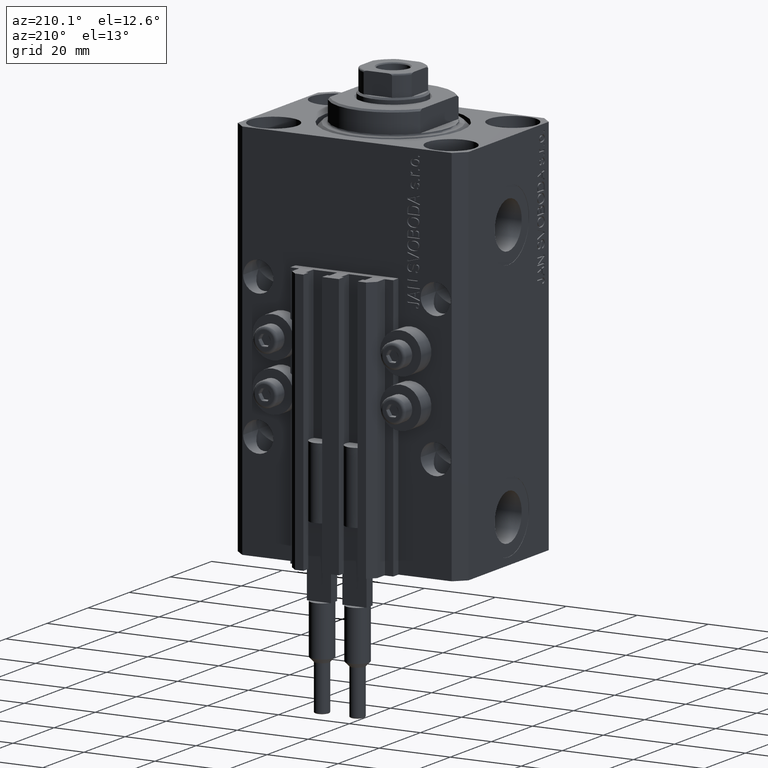
[diagram: clean part render]
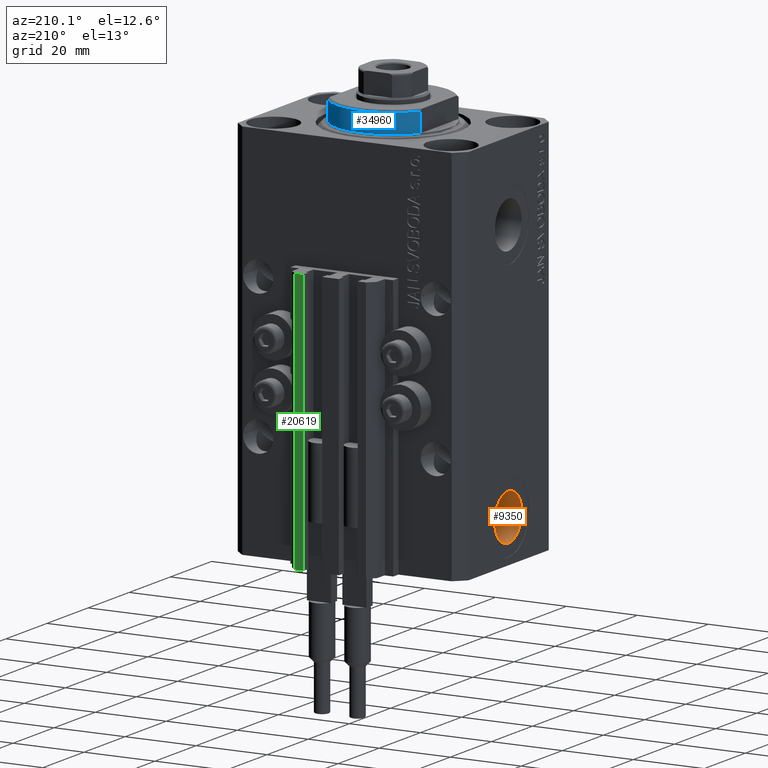
[diagram: same view with three faces highlighted in distinct colors, each labeled with its STEP entity id]
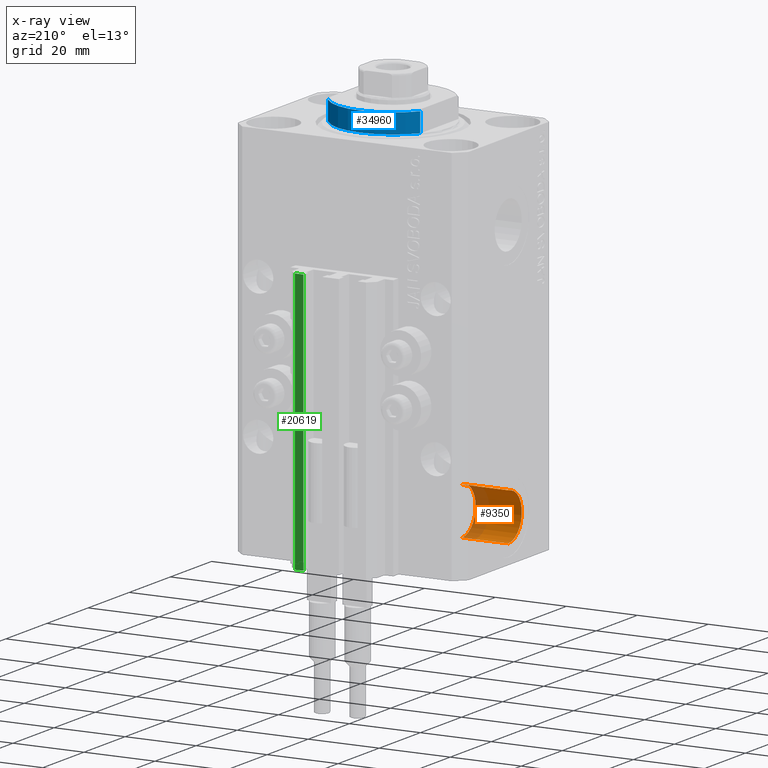
[diagram: x-ray of the same camera — body ghosted, the three highlighted faces saturated]
A machine part, auxiliary view with three faces highlighted in distinct colors.
The next image is the same camera in x-ray (body ghosted, the three faces saturated) — at least one of them is partly hidden behind the body in this view.
Their STEP definitions:

[orange] entity #9350 — the highlighted cylindrical surface (edge-blend (fillet) strip) has radius 6.58 mm, axis along (-1, -0, -0).
#93 = CARTESIAN_POINT ( 'NONE',  ( -19.39999999999650271, -1.163414459189985643E-14, -95.00000000000000000 ) ) ;
#3465 = CARTESIAN_POINT ( 'NONE',  ( -32.39999999999650271, -1.163414459189985643E-14, -88.42000000000000171 ) ) ;
#4131 = AXIS2_PLACEMENT_3D ( 'NONE', #7194, #11401, #18103 ) ;
#4463 = DIRECTION ( 'NONE',  ( -1.000000000000000000, -0.000000000000000000, -0.000000000000000000 ) ) ;
#4959 = CARTESIAN_POINT ( 'NONE',  ( -19.39999999999650271, -1.163414459189985643E-14, -88.42000000000000171 ) ) ;
#5482 = EDGE_CURVE ( 'NONE', #44669, #22899, #48176, .T. ) ;
#7194 = CARTESIAN_POINT ( 'NONE',  ( -19.39999999999650271, -1.163414459189985643E-14, -95.00000000000000000 ) ) ;
#7470 = DIRECTION ( 'NONE',  ( 0.000000000000000000, 0.000000000000000000, 1.000000000000000000 ) ) ;
#8529 = DIRECTION ( 'NONE',  ( -1.000000000000000000, -0.000000000000000000, -0.000000000000000000 ) ) ;
#8775 = DIRECTION ( 'NONE',  ( 0.000000000000000000, 0.000000000000000000, 1.000000000000000000 ) ) ;
#9350 = ADVANCED_FACE ( 'NONE', ( #26892 ), #38533, .F. ) ;
#9409 = VERTEX_POINT ( 'NONE', #20167 ) ;
#11204 = DIRECTION ( 'NONE',  ( -1.000000000000000000, 0.000000000000000000, 0.000000000000000000 ) ) ;
#11401 = DIRECTION ( 'NONE',  ( -1.000000000000000000, 0.000000000000000000, 0.000000000000000000 ) ) ;
#12892 = EDGE_CURVE ( 'NONE', #38949, #44669, #19341, .T. ) ;
#14430 = CIRCLE ( 'NONE', #4131, 6.580000000000002736 ) ;
#15881 = DIRECTION ( 'NONE',  ( -1.000000000000000000, -0.000000000000000000, -0.000000000000000000 ) ) ;
#18103 = DIRECTION ( 'NONE',  ( 0.000000000000000000, 0.000000000000000000, 1.000000000000000000 ) ) ;
#18330 = EDGE_CURVE ( 'NONE', #38949, #9409, #14430, .T. ) ;
#18995 = AXIS2_PLACEMENT_3D ( 'NONE', #93, #8529, #8775 ) ;
#19341 = LINE ( 'NONE', #38446, #38020 ) ;
#20167 = CARTESIAN_POINT ( 'NONE',  ( -19.39999999999650271, -1.163414459189985643E-14, -88.42000000000000171 ) ) ;
#22899 = VERTEX_POINT ( 'NONE', #3465 ) ;
#23617 = AXIS2_PLACEMENT_3D ( 'NONE', #45183, #11204, #7470 ) ;
#25645 = CARTESIAN_POINT ( 'NONE',  ( -32.39999999999650271, -1.082832699806089739E-14, -101.5799999999999983 ) ) ;
#26892 = FACE_OUTER_BOUND ( 'NONE', #42050, .T. ) ;
#27725 = ORIENTED_EDGE ( 'NONE', *, *, #12892, .T. ) ;
#28115 = ORIENTED_EDGE ( 'NONE', *, *, #5482, .T. ) ;
#28892 = ORIENTED_EDGE ( 'NONE', *, *, #44173, .F. ) ;
#30850 = VECTOR ( 'NONE', #15881, 1000.000000000000000 ) ;
#31780 = CARTESIAN_POINT ( 'NONE',  ( -19.39999999999650271, -1.082832699806089739E-14, -101.5799999999999983 ) ) ;
#38020 = VECTOR ( 'NONE', #4463, 1000.000000000000000 ) ;
#38446 = CARTESIAN_POINT ( 'NONE',  ( -19.39999999999650271, -1.082832699806089739E-14, -101.5799999999999983 ) ) ;
#38533 = CYLINDRICAL_SURFACE ( 'NONE', #18995, 6.580000000000002736 ) ;
#38550 = ORIENTED_EDGE ( 'NONE', *, *, #18330, .F. ) ;
#38698 = LINE ( 'NONE', #4959, #30850 ) ;
#38949 = VERTEX_POINT ( 'NONE', #31780 ) ;
#42050 = EDGE_LOOP ( 'NONE', ( #38550, #27725, #28115, #28892 ) ) ;
#44173 = EDGE_CURVE ( 'NONE', #9409, #22899, #38698, .T. ) ;
#44669 = VERTEX_POINT ( 'NONE', #25645 ) ;
#45183 = CARTESIAN_POINT ( 'NONE',  ( -32.39999999999650271, -1.163414459189985643E-14, -95.00000000000000000 ) ) ;
#48176 = CIRCLE ( 'NONE', #23617, 6.580000000000002736 ) ;

[blue] entity #34960 — the highlighted cylindrical surface (partial cylindrical patch) has radius 16 mm, axis along (0, 0, -1).
#109 = FACE_OUTER_BOUND ( 'NONE', #26119, .T. ) ;
#397 = CARTESIAN_POINT ( 'NONE',  ( 13.00000000000000000, 9.327379053088813876, -6.500000000000000000 ) ) ;
#2454 = ORIENTED_EDGE ( 'NONE', *, *, #48788, .F. ) ;
#4095 = EDGE_CURVE ( 'NONE', #32847, #15091, #14864, .T. ) ;
#5554 = CARTESIAN_POINT ( 'NONE',  ( 0.000000000000000000, 0.000000000000000000, -6.000000000000023981 ) ) ;
#8055 = DIRECTION ( 'NONE',  ( -0.000000000000000000, -0.000000000000000000, 1.000000000000000000 ) ) ;
#11477 = CARTESIAN_POINT ( 'NONE',  ( 13.00000000000000000, 9.327379053088916905, -6.000000000000014211 ) ) ;
#13033 = ORIENTED_EDGE ( 'NONE', *, *, #44455, .T. ) ;
#13413 = CIRCLE ( 'NONE', #15001, 16.00000000000000000 ) ;
#13521 = VERTEX_POINT ( 'NONE', #17758 ) ;
#14113 = VERTEX_POINT ( 'NONE', #11477 ) ;
#14864 = CIRCLE ( 'NONE', #21192, 16.00000000000000000 ) ;
#15001 = AXIS2_PLACEMENT_3D ( 'NONE', #5554, #28383, #32101 ) ;
#15091 = VERTEX_POINT ( 'NONE', #16392 ) ;
#16392 = CARTESIAN_POINT ( 'NONE',  ( 13.00000000000000000, 9.327379053088815652, -0.4999999999999995559 ) ) ;
#17758 = CARTESIAN_POINT ( 'NONE',  ( -13.00000000000000000, 9.327379053088916905, -6.000000000000014211 ) ) ;
#19410 = VECTOR ( 'NONE', #27939, 1000.000000000000000 ) ;
#21192 = AXIS2_PLACEMENT_3D ( 'NONE', #41626, #29982, #30462 ) ;
#22744 = AXIS2_PLACEMENT_3D ( 'NONE', #34593, #8055, #38314 ) ;
#23936 = CARTESIAN_POINT ( 'NONE',  ( -13.00000000000000000, 9.327379053088815652, -0.4999999999999995559 ) ) ;
#23964 = DIRECTION ( 'NONE',  ( -0.000000000000000000, -0.000000000000000000, 1.000000000000000000 ) ) ;
#24461 = LINE ( 'NONE', #47027, #19410 ) ;
#25457 = VECTOR ( 'NONE', #23964, 1000.000000000000000 ) ;
#26119 = EDGE_LOOP ( 'NONE', ( #2454, #13033, #30059, #39176 ) ) ;
#27939 = DIRECTION ( 'NONE',  ( -0.000000000000000000, -0.000000000000000000, 1.000000000000000000 ) ) ;
#28383 = DIRECTION ( 'NONE',  ( 0.000000000000000000, 0.000000000000000000, 1.000000000000000000 ) ) ;
#28453 = EDGE_CURVE ( 'NONE', #13521, #32847, #24461, .T. ) ;
#29982 = DIRECTION ( 'NONE',  ( -0.000000000000000000, -0.000000000000000000, -1.000000000000000000 ) ) ;
#30059 = ORIENTED_EDGE ( 'NONE', *, *, #28453, .T. ) ;
#30462 = DIRECTION ( 'NONE',  ( 1.000000000000000000, -8.881784197001252323E-16, 0.000000000000000000 ) ) ;
#32101 = DIRECTION ( 'NONE',  ( -1.000000000000000000, 0.000000000000000000, 0.000000000000000000 ) ) ;
#32847 = VERTEX_POINT ( 'NONE', #23936 ) ;
#34593 = CARTESIAN_POINT ( 'NONE',  ( 0.000000000000000000, 0.000000000000000000, -6.500000000000000000 ) ) ;
#34960 = ADVANCED_FACE ( 'NONE', ( #109 ), #42041, .T. ) ;
#38314 = DIRECTION ( 'NONE',  ( 1.000000000000000000, 0.000000000000000000, 0.000000000000000000 ) ) ;
#38360 = LINE ( 'NONE', #397, #25457 ) ;
#39176 = ORIENTED_EDGE ( 'NONE', *, *, #4095, .T. ) ;
#41626 = CARTESIAN_POINT ( 'NONE',  ( 0.000000000000000000, 0.000000000000000000, -0.4999999999999995559 ) ) ;
#42041 = CYLINDRICAL_SURFACE ( 'NONE', #22744, 16.00000000000000000 ) ;
#44455 = EDGE_CURVE ( 'NONE', #14113, #13521, #13413, .T. ) ;
#47027 = CARTESIAN_POINT ( 'NONE',  ( -13.00000000000000000, 9.327379053088813876, -6.500000000000000000 ) ) ;
#48788 = EDGE_CURVE ( 'NONE', #14113, #15091, #38360, .T. ) ;

[green] entity #20619 — the highlighted planar face has unit normal (-0, 1, 0).
#53 = ORIENTED_EDGE ( 'NONE', *, *, #20195, .T. ) ;
#273 = VERTEX_POINT ( 'NONE', #28834 ) ;
#2344 = VERTEX_POINT ( 'NONE', #13013 ) ;
#3420 = DIRECTION ( 'NONE',  ( -1.476360405086644852E-15, 1.000000000000000000, 0.000000000000000000 ) ) ;
#5958 = VECTOR ( 'NONE', #18156, 1000.000000000000000 ) ;
#8066 = VECTOR ( 'NONE', #37996, 1000.000000000000000 ) ;
#10613 = DIRECTION ( 'NONE',  ( -1.000000000000000000, -1.476360405086644852E-15, 0.000000000000000000 ) ) ;
#11647 = CARTESIAN_POINT ( 'NONE',  ( 7.649999999999995026, 30.49999999999949196, -107.0000000000000000 ) ) ;
#11700 = LINE ( 'NONE', #41719, #8066 ) ;
#13013 = CARTESIAN_POINT ( 'NONE',  ( 9.999999999999994671, 30.49999999999949551, -107.0000000000000000 ) ) ;
#17166 = VERTEX_POINT ( 'NONE', #11647 ) ;
#18156 = DIRECTION ( 'NONE',  ( 0.000000000000000000, 0.000000000000000000, 1.000000000000000000 ) ) ;
#18536 = EDGE_CURVE ( 'NONE', #36477, #273, #40132, .T. ) ;
#19951 = AXIS2_PLACEMENT_3D ( 'NONE', #48308, #3420, #10613 ) ;
#20195 = EDGE_CURVE ( 'NONE', #17166, #273, #11700, .T. ) ;
#20619 = ADVANCED_FACE ( 'NONE', ( #21531 ), #21281, .T. ) ;
#20894 = LINE ( 'NONE', #36039, #5958 ) ;
#21050 = DIRECTION ( 'NONE',  ( -1.000000000000000000, -1.476360405086644852E-15, 0.000000000000000000 ) ) ;
#21281 = PLANE ( 'NONE',  #19951 ) ;
#21531 = FACE_OUTER_BOUND ( 'NONE', #24364, .T. ) ;
#21978 = ORIENTED_EDGE ( 'NONE', *, *, #28105, .F. ) ;
#24364 = EDGE_LOOP ( 'NONE', ( #30581, #21978, #34724, #53 ) ) ;
#24800 = CARTESIAN_POINT ( 'NONE',  ( 9.999999999999994671, 30.49999999999949551, -107.0000000000000000 ) ) ;
#25210 = VECTOR ( 'NONE', #21050, 1000.000000000000000 ) ;
#26377 = VECTOR ( 'NONE', #31717, 1000.000000000000000 ) ;
#28105 = EDGE_CURVE ( 'NONE', #2344, #36477, #20894, .T. ) ;
#28515 = LINE ( 'NONE', #24800, #25210 ) ;
#28834 = CARTESIAN_POINT ( 'NONE',  ( 7.649999999999995026, 30.49999999999949196, -33.00000000000000000 ) ) ;
#30581 = ORIENTED_EDGE ( 'NONE', *, *, #18536, .F. ) ;
#31271 = CARTESIAN_POINT ( 'NONE',  ( 9.999999999999994671, 30.49999999999949551, -33.00000000000000000 ) ) ;
#31717 = DIRECTION ( 'NONE',  ( -1.000000000000000000, -1.476360405086644852E-15, 0.000000000000000000 ) ) ;
#34724 = ORIENTED_EDGE ( 'NONE', *, *, #41051, .T. ) ;
#36039 = CARTESIAN_POINT ( 'NONE',  ( 9.999999999999994671, 30.49999999999949551, -107.0000000000000000 ) ) ;
#36477 = VERTEX_POINT ( 'NONE', #31271 ) ;
#37996 = DIRECTION ( 'NONE',  ( 0.000000000000000000, 0.000000000000000000, 1.000000000000000000 ) ) ;
#39153 = CARTESIAN_POINT ( 'NONE',  ( 9.999999999999994671, 30.49999999999949551, -33.00000000000000000 ) ) ;
#40132 = LINE ( 'NONE', #39153, #26377 ) ;
#41051 = EDGE_CURVE ( 'NONE', #2344, #17166, #28515, .T. ) ;
#41719 = CARTESIAN_POINT ( 'NONE',  ( 7.649999999999995026, 30.49999999999949196, -107.0000000000000000 ) ) ;
#48308 = CARTESIAN_POINT ( 'NONE',  ( 9.999999999999994671, 30.49999999999949551, -107.0000000000000000 ) ) ;